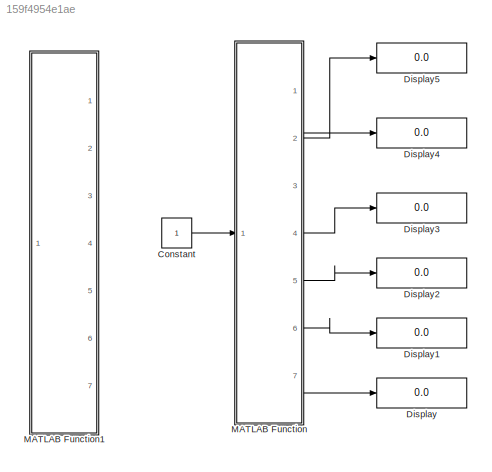
MODEL slx_159f4954e1ae
KIND model
CONFIG AbsTol = auto
CONFIG EnableMultiTasking = on
CONFIG FixedStep = 0.1
CONFIG MaxStep = auto
CONFIG MinStep = auto
CONFIG RelTol = 1e-3
CONFIG SampleTimeConstraint = Unconstrained
CONFIG Solver = ode4
CONFIG SolverName = ode4
CONFIG StartTime = 0.0
CONFIG StopTime = 10
BLOCK [Constant] Constant
BLOCK [Display] Display
  Decimation = 2
  Ports = [1]
BLOCK [Display] Display1
  Decimation = 2
  Ports = [1]
BLOCK [Display] Display2
  Decimation = 2
  Ports = [1]
BLOCK [Display] Display3
  Decimation = 2
  Ports = [1]
BLOCK [Display] Display4
  Decimation = 2
  Ports = [1]
BLOCK [Display] Display5
  Decimation = 2
  Ports = [1]
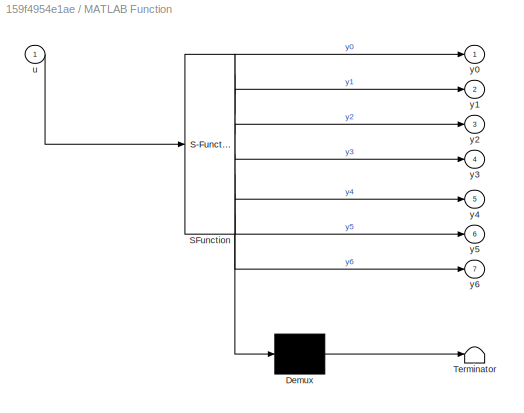
BLOCK [SubSystem] MATLAB Function
  ErrorFcn = Stateflow.Translate.translate
  PermitHierarchicalResolution = ExplicitOnly
  Ports = [1, 7]
  RequestExecContextInheritance = off
  SFBlockType = MATLAB Function
  TreatAsAtomicUnit = on
BLOCK [Demux] MATLAB Function/ Demux 
  Outputs = 1
  Ports = [1, 1]
BLOCK [S-Function] MATLAB Function/ SFunction 
  EnableBusSupport = on
  FunctionName = sf_sfun
  PortCounts = [1 8]
  Ports = [1, 8]
  SFcnIsStateOwnerBlock = off
  SFunctionDeploymentMode = off
  Tag = Stateflow S-Function TestStruct 1
BLOCK [Terminator] MATLAB Function/ Terminator 
BLOCK [Inport] MATLAB Function/u
  IconDisplay = Port number
BLOCK [Outport] MATLAB Function/y0
  IconDisplay = Port number
BLOCK [Outport] MATLAB Function/y1
  IconDisplay = Port number
  Port = 2
BLOCK [Outport] MATLAB Function/y2
  IconDisplay = Port number
  Port = 3
BLOCK [Outport] MATLAB Function/y3
  IconDisplay = Port number
  Port = 4
BLOCK [Outport] MATLAB Function/y4
  IconDisplay = Port number
  Port = 5
BLOCK [Outport] MATLAB Function/y5
  IconDisplay = Port number
  Port = 6
BLOCK [Outport] MATLAB Function/y6
  IconDisplay = Port number
  Port = 7
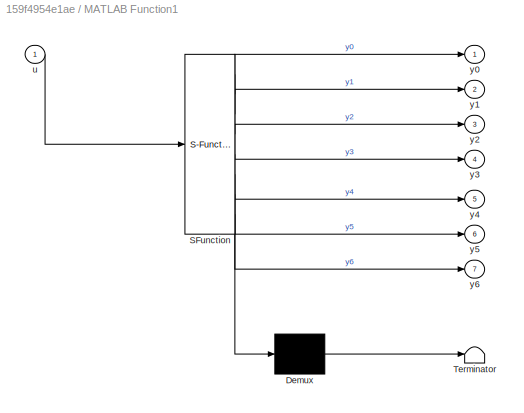
BLOCK [SubSystem] MATLAB Function1
  Commented = on
  ErrorFcn = Stateflow.Translate.translate
  PermitHierarchicalResolution = ExplicitOnly
  Ports = [1, 7]
  RequestExecContextInheritance = off
  SFBlockType = MATLAB Function
  TreatAsAtomicUnit = on
BLOCK [Demux] MATLAB Function1/ Demux 
  Outputs = 1
  Ports = [1, 1]
BLOCK [S-Function] MATLAB Function1/ SFunction 
  EnableBusSupport = on
  FunctionName = sf_sfun
  PortCounts = [1 8]
  Ports = [1, 8]
  SFcnIsStateOwnerBlock = off
  SFunctionDeploymentMode = off
  Tag = Stateflow S-Function TestStruct 2
BLOCK [Terminator] MATLAB Function1/ Terminator 
BLOCK [Inport] MATLAB Function1/u
  IconDisplay = Port number
BLOCK [Outport] MATLAB Function1/y0
  IconDisplay = Port number
BLOCK [Outport] MATLAB Function1/y1
  IconDisplay = Port number
  Port = 2
BLOCK [Outport] MATLAB Function1/y2
  IconDisplay = Port number
  Port = 3
BLOCK [Outport] MATLAB Function1/y3
  IconDisplay = Port number
  Port = 4
BLOCK [Outport] MATLAB Function1/y4
  IconDisplay = Port number
  Port = 5
BLOCK [Outport] MATLAB Function1/y5
  IconDisplay = Port number
  Port = 6
BLOCK [Outport] MATLAB Function1/y6
  IconDisplay = Port number
  Port = 7
LINE Constant:1 -> MATLAB Function:1
LINE MATLAB Function:2 -> Display5:1
LINE MATLAB Function:3 -> Display4:1
LINE MATLAB Function:4 -> Display3:1
LINE MATLAB Function:5 -> Display2:1
LINE MATLAB Function:6 -> Display1:1
LINE MATLAB Function:7 -> Display:1
CHART MATLAB Function states=1 transitions=1
  STATE_LABEL 'eML_blk_kernel()'
  STATE_LABEL "SCRIPT:\nfunction [y0, y1,y2,y3,y4,y5,y6] = fcn(u)\nif u==1\n    y0 = evalin('base','value0');\n    y1 = evalin('base','value0');\n    y2 = evalin('base','value0');\n    y3 = evalin('base','value0');\n    y4 = evalin('base','value0');\n    y5 = evalin('base','value0');\n    y6 = evalin('base','value0');\nend\nend\n\n"
CHART MATLAB Function1 states=1 transitions=1
  STATE_LABEL 'eML_blk_kernel()'
  STATE_LABEL "SCRIPT:\nfunction [y0, y1,y2,y3,y4,y5,y6] = fcn(u)\ncoder.extrinsic('AdsReadStruct');\ny0 = double(0);\ny1 = double(0);\ny2 = double(0);\ny3 = double(0);\ny4 = double(0);\ny5 = double(0);\ny6 = double(0);\nif u==1\n    [y0, y1, y2, y3, y4, y5, y6] = AdsReadStruct();\nend\nend\n"
